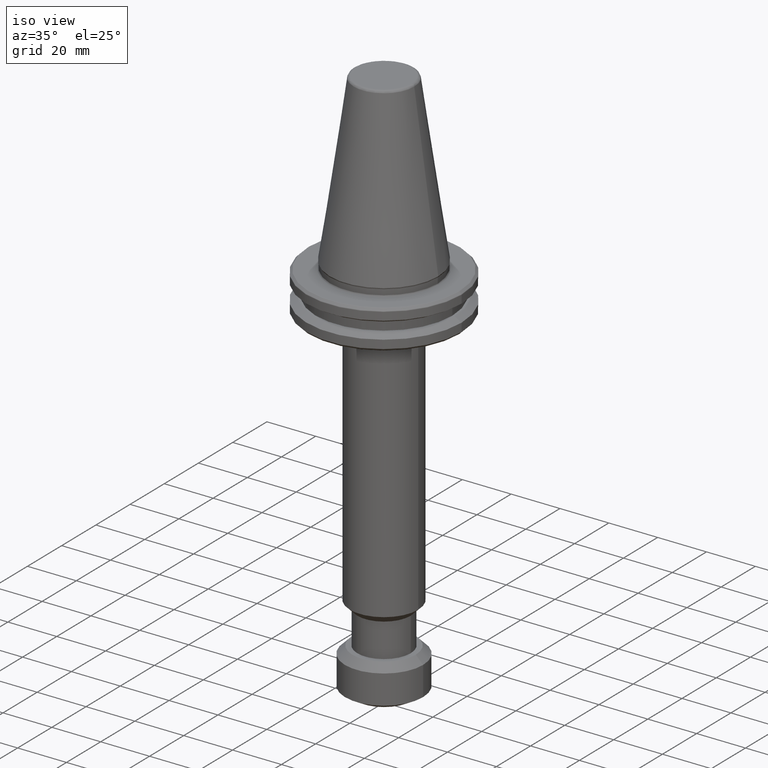
[diagram: clean part render]
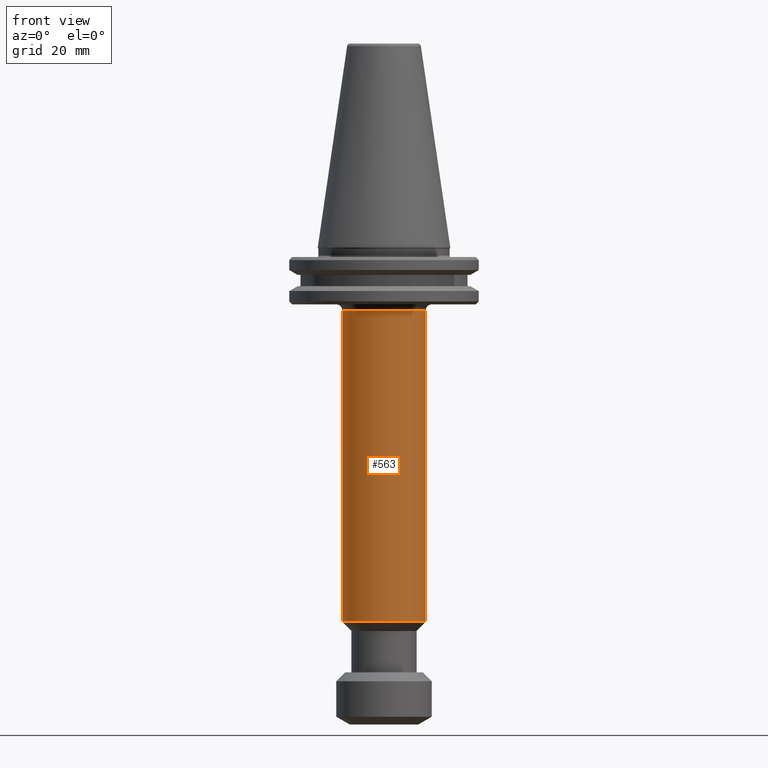
[diagram: tour spotlight — one face highlighted and labeled with its STEP entity id]
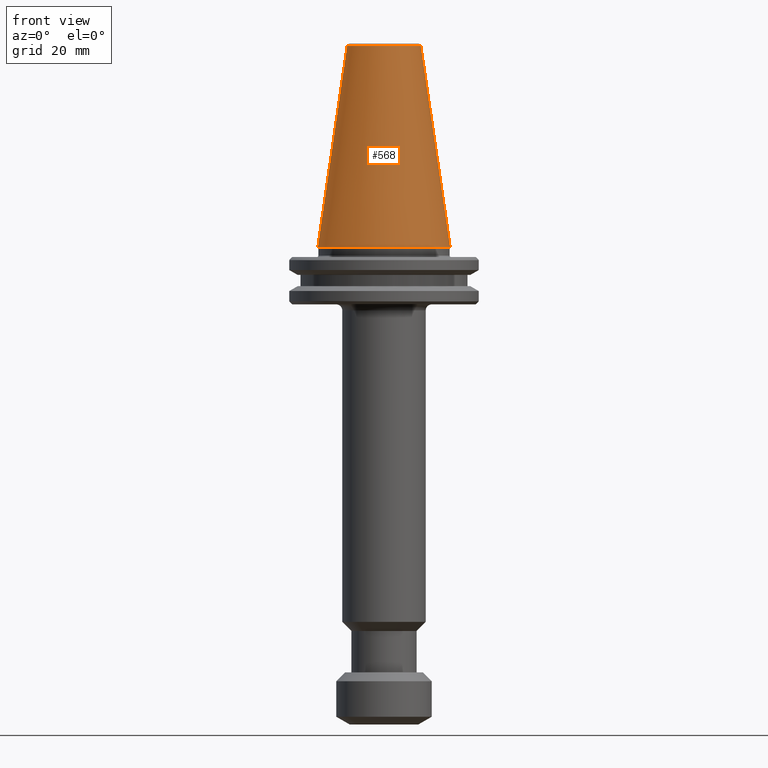
[diagram: tour spotlight — one face highlighted and labeled with its STEP entity id]
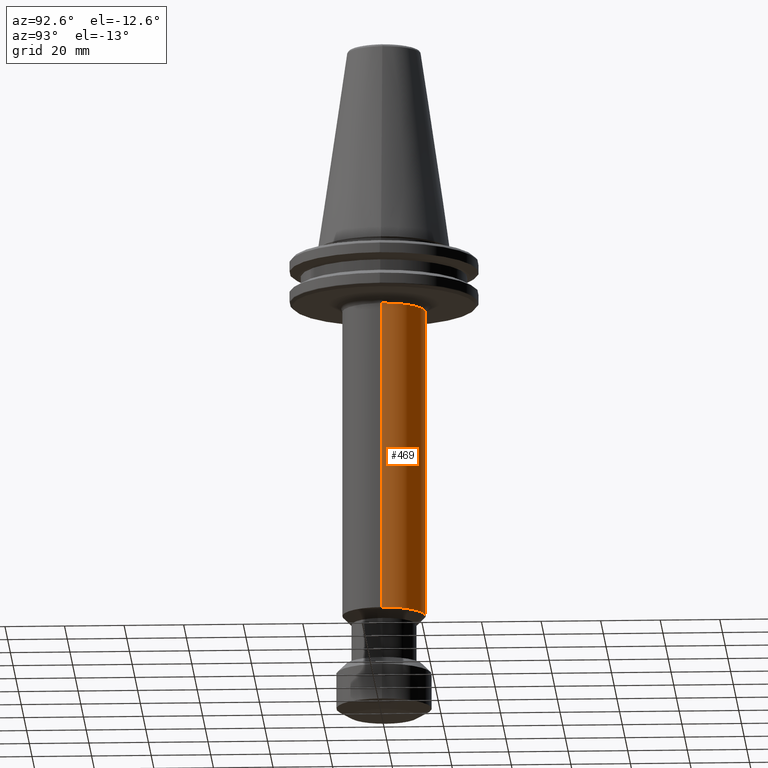
[diagram: tour spotlight — one face highlighted and labeled with its STEP entity id]
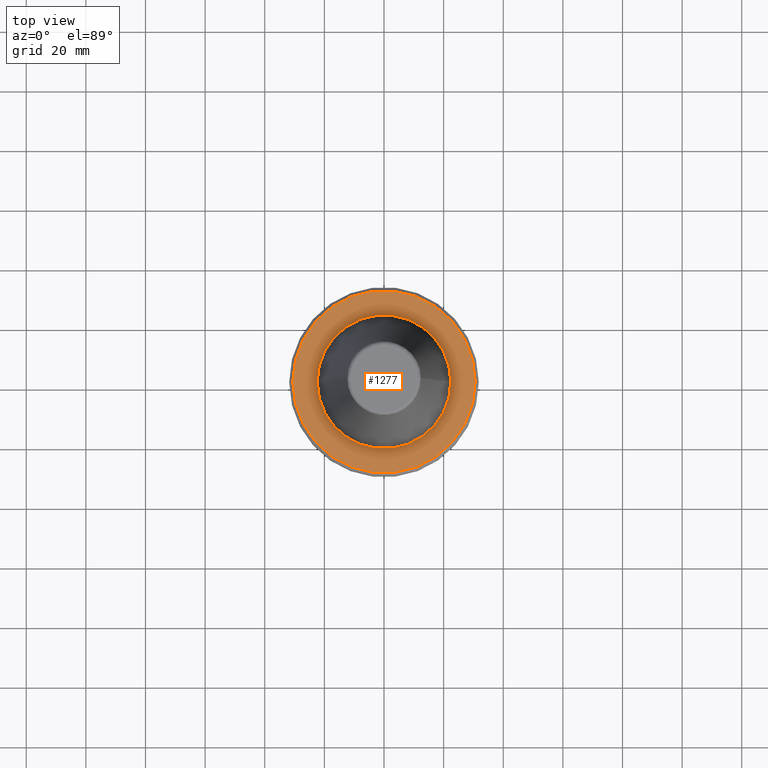
[diagram: tour spotlight — one face highlighted and labeled with its STEP entity id]
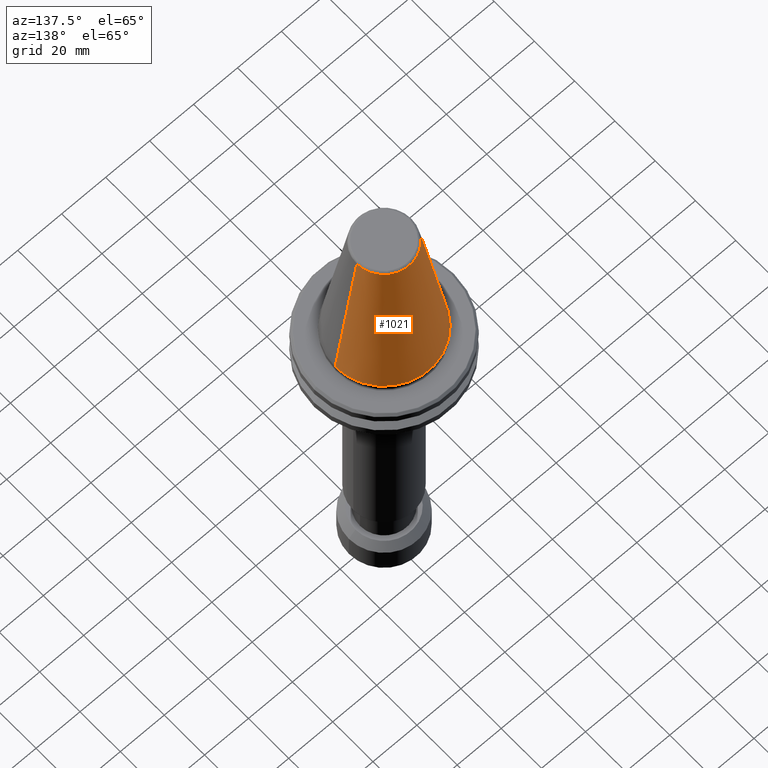
[diagram: tour spotlight — one face highlighted and labeled with its STEP entity id]
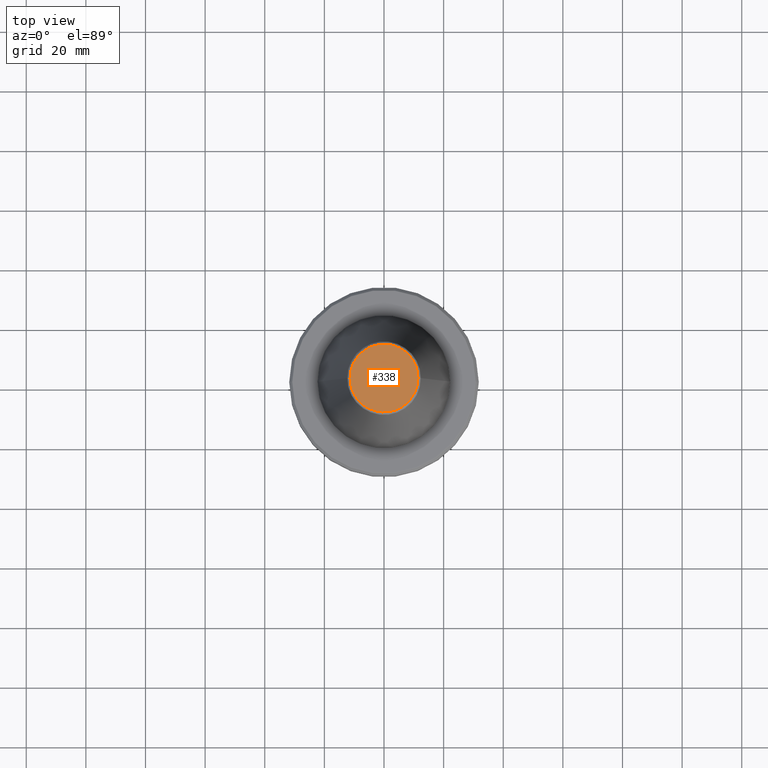
[diagram: tour spotlight — one face highlighted and labeled with its STEP entity id]
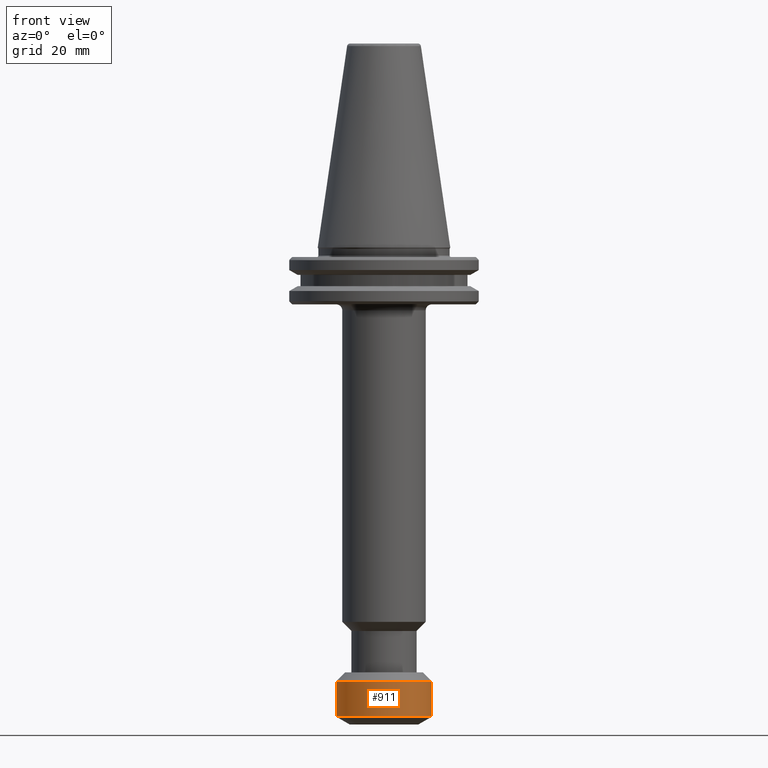
[diagram: tour spotlight — one face highlighted and labeled with its STEP entity id]
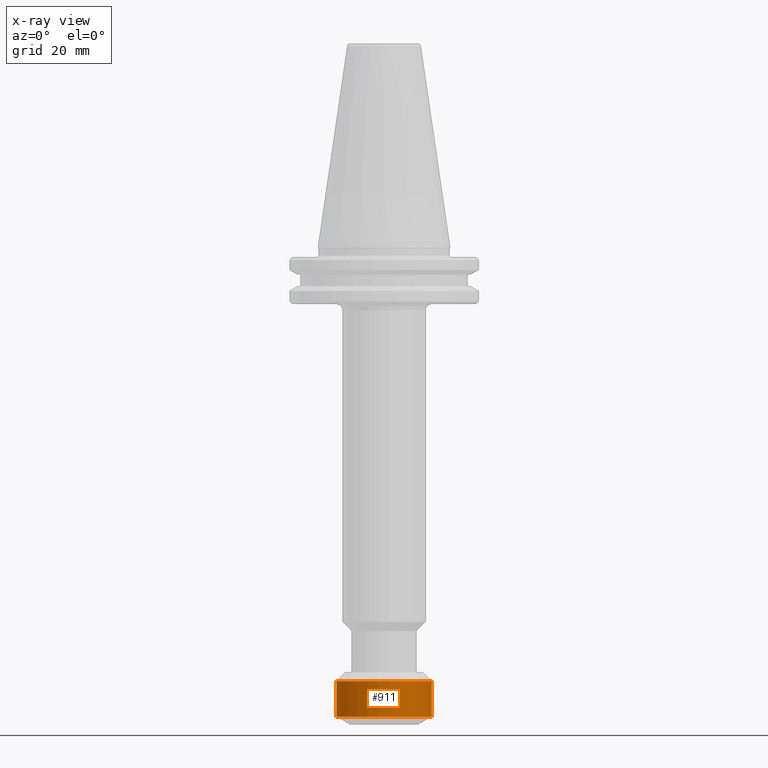
[diagram: x-ray of the same camera — body ghosted, this tour face saturated]
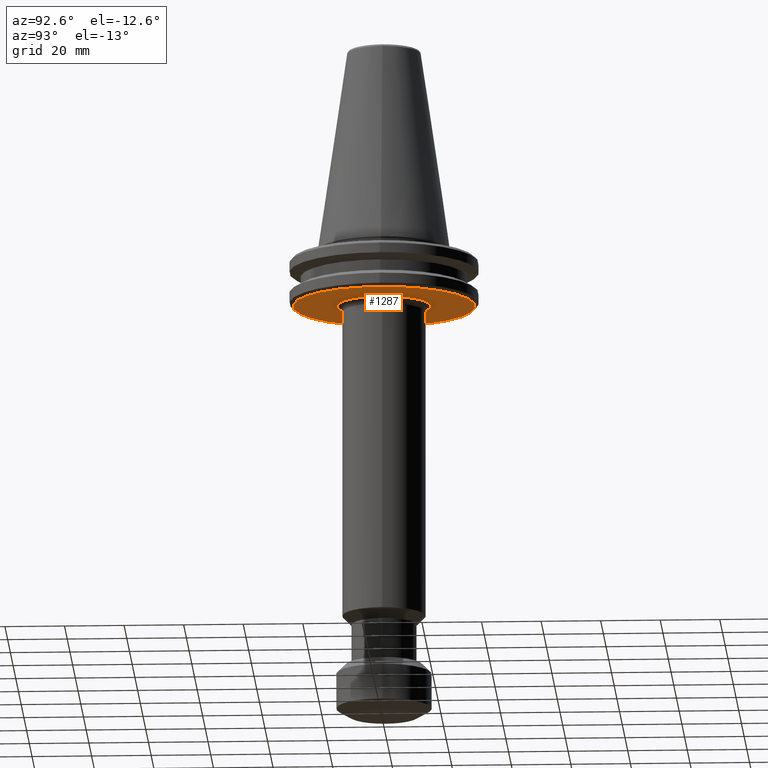
[diagram: tour spotlight — one face highlighted and labeled with its STEP entity id]
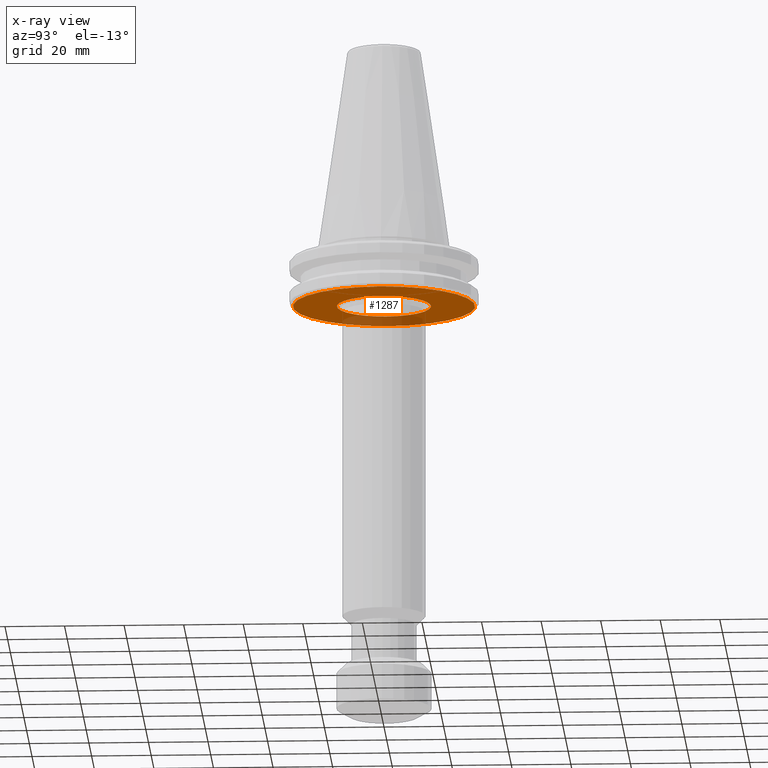
[diagram: x-ray of the same camera — body ghosted, this tour face saturated]
A machine part: a face-by-face anatomy tour. The part has 53 B-rep faces; the first image is the clean iso view, then the 8 largest visible faces are spotlighted one at a time (largest first), each with its STEP entity span.

Face 1 — front view, entity #563. In plain terms, the highlighted cylindrical surface (partial cylindrical patch) has radius 14 mm, axis along (-0, 0, 1).
Definition (entity closure, byte-faithful):
#38 = VECTOR ( 'NONE', #378, 1000.000000000000000 ) ;
#56 = EDGE_CURVE ( 'NONE', #282, #1254, #1248, .T. ) ;
#83 = DIRECTION ( 'NONE',  ( -9.912705577010328500E-016, 0.0000000000000000000, 1.000000000000000000 ) ) ;
#87 = CARTESIAN_POINT ( 'NONE',  ( 4.126992737972649500E-029, 0.0000000000000000000, -125.5800000000000300 ) ) ;
#224 = LINE ( 'NONE', #986, #38 ) ;
#282 = VERTEX_POINT ( 'NONE', #1132 ) ;
#294 = VECTOR ( 'NONE', #83, 1000.000000000000000 ) ;
#297 = EDGE_CURVE ( 'NONE', #1530, #1254, #598, .T. ) ;
#312 = ORIENTED_EDGE ( 'NONE', *, *, #1203, .T. ) ;
#357 = ORIENTED_EDGE ( 'NONE', *, *, #56, .F. ) ;
#378 = DIRECTION ( 'NONE',  ( -9.912705577010328500E-016, 0.0000000000000000000, 1.000000000000000000 ) ) ;
#406 = ORIENTED_EDGE ( 'NONE', *, *, #297, .T. ) ;
#417 = ORIENTED_EDGE ( 'NONE', *, *, #760, .T. ) ;
#424 = CARTESIAN_POINT ( 'NONE',  ( 13.99999999999994800, -1.714505518806294600E-015, -21.10000000000000100 ) ) ;
#563 = ADVANCED_FACE ( 'NONE', ( #805 ), #1430, .T. ) ;
#598 = CIRCLE ( 'NONE', #1059, 14.00000000000000000 ) ;
#629 = CIRCLE ( 'NONE', #840, 14.00000000000000000 ) ;
#656 = DIRECTION ( 'NONE',  ( 1.000000000000000000, 0.0000000000000000000, 1.982541115402065300E-015 ) ) ;
#683 = VERTEX_POINT ( 'NONE', #705 ) ;
#705 = CARTESIAN_POINT ( 'NONE',  ( 13.99999999999994700, 0.0000000000000000000, -125.5800000000000300 ) ) ;
#744 = CARTESIAN_POINT ( 'NONE',  ( -14.00000000000000000, 1.714505518806294600E-015, -125.5800000000000300 ) ) ;
#752 = DIRECTION ( 'NONE',  ( 9.912705577010328500E-016, -0.0000000000000000000, -1.000000000000000000 ) ) ;
#760 = EDGE_CURVE ( 'NONE', #282, #683, #629, .T. ) ;
#798 = DIRECTION ( 'NONE',  ( -9.912705577010328500E-016, 0.0000000000000000000, 1.000000000000000000 ) ) ;
#805 = FACE_OUTER_BOUND ( 'NONE', #1063, .T. ) ;
#840 = AXIS2_PLACEMENT_3D ( 'NONE', #87, #798, #1101 ) ;
#986 = CARTESIAN_POINT ( 'NONE',  ( 14.00000000000000000, 0.0000000000000000000, -125.5799999999999700 ) ) ;
#1012 = CARTESIAN_POINT ( 'NONE',  ( -1.035679478686038800E-013, 0.0000000000000000000, -21.10000000000002300 ) ) ;
#1059 = AXIS2_PLACEMENT_3D ( 'NONE', #1012, #752, #1367 ) ;
#1063 = EDGE_LOOP ( 'NONE', ( #357, #417, #312, #406 ) ) ;
#1101 = DIRECTION ( 'NONE',  ( 1.000000000000000000, 0.0000000000000000000, 1.982541115402065300E-015 ) ) ;
#1106 = CARTESIAN_POINT ( 'NONE',  ( -14.00000000000007800, -1.435721588042324400E-009, -21.10000000000001200 ) ) ;
#1132 = CARTESIAN_POINT ( 'NONE',  ( -13.99999999999992500, 1.714505518806285000E-015, -125.5800000000000300 ) ) ;
#1197 = AXIS2_PLACEMENT_3D ( 'NONE', #1292, #1352, #656 ) ;
#1203 = EDGE_CURVE ( 'NONE', #683, #1530, #224, .T. ) ;
#1248 = LINE ( 'NONE', #744, #294 ) ;
#1254 = VERTEX_POINT ( 'NONE', #1106 ) ;
#1292 = CARTESIAN_POINT ( 'NONE',  ( 0.0000000000000000000, 0.0000000000000000000, -125.5800000000000000 ) ) ;
#1352 = DIRECTION ( 'NONE',  ( -9.912705577010328500E-016, 0.0000000000000000000, 1.000000000000000000 ) ) ;
#1367 = DIRECTION ( 'NONE',  ( 1.000000000000000000, 0.0000000000000000000, 9.912705577010326500E-016 ) ) ;
#1430 = CYLINDRICAL_SURFACE ( 'NONE', #1197, 14.00000000000000000 ) ;
#1530 = VERTEX_POINT ( 'NONE', #424 ) ;

Face 2 — front view, entity #568. In plain terms, the highlighted conical surface has half-angle 8.297 deg.
Definition (entity closure, byte-faithful):
#1 = CARTESIAN_POINT ( 'NONE',  ( -22.22499999999999400, 0.0000000000000000000, 0.0000000000000000000 ) ) ;
#67 = EDGE_CURVE ( 'NONE', #86, #894, #278, .T. ) ;
#86 = VERTEX_POINT ( 'NONE', #159 ) ;
#104 = EDGE_CURVE ( 'NONE', #894, #1108, #843, .T. ) ;
#121 = CONICAL_SURFACE ( 'NONE', #1107, 22.22499999999999400, 0.1448138465495947800 ) ;
#159 = CARTESIAN_POINT ( 'NONE',  ( 12.37469537600000400, -1.827424880260667500E-009, 67.54430822700000200 ) ) ;
#243 = DIRECTION ( 'NONE',  ( -0.0000000000000000000, -0.0000000000000000000, -1.000000000000000000 ) ) ;
#278 = LINE ( 'NONE', #1359, #344 ) ;
#344 = VECTOR ( 'NONE', #903, 1000.000000000000100 ) ;
#346 = CIRCLE ( 'NONE', #1522, 12.37469537600000400 ) ;
#416 = CARTESIAN_POINT ( 'NONE',  ( 22.22499999999999400, 2.721777511104992100E-015, 0.0000000000000000000 ) ) ;
#564 = LINE ( 'NONE', #1098, #718 ) ;
#568 = ADVANCED_FACE ( 'NONE', ( #1467 ), #121, .T. ) ;
#603 = EDGE_CURVE ( 'NONE', #615, #1108, #564, .T. ) ;
#615 = VERTEX_POINT ( 'NONE', #1413 ) ;
#718 = VECTOR ( 'NONE', #1280, 1000.000000000000100 ) ;
#758 = ORIENTED_EDGE ( 'NONE', *, *, #104, .F. ) ;
#821 = DIRECTION ( 'NONE',  ( 0.0000000000000000000, 0.0000000000000000000, -1.000000000000000000 ) ) ;
#843 = CIRCLE ( 'NONE', #1093, 22.22499999999999800 ) ;
#862 = ORIENTED_EDGE ( 'NONE', *, *, #1325, .T. ) ;
#894 = VERTEX_POINT ( 'NONE', #416 ) ;
#903 = DIRECTION ( 'NONE',  ( 0.1443082272694599400, 1.767266086161729200E-017, -0.9895327864918603800 ) ) ;
#945 = ORIENTED_EDGE ( 'NONE', *, *, #603, .T. ) ;
#1004 = CARTESIAN_POINT ( 'NONE',  ( 0.0000000000000000000, 0.0000000000000000000, 0.0000000000000000000 ) ) ;
#1008 = EDGE_LOOP ( 'NONE', ( #1312, #862, #945, #758 ) ) ;
#1046 = DIRECTION ( 'NONE',  ( 1.000000000000000000, 0.0000000000000000000, -2.683064993777401700E-017 ) ) ;
#1093 = AXIS2_PLACEMENT_3D ( 'NONE', #1251, #243, #1046 ) ;
#1098 = CARTESIAN_POINT ( 'NONE',  ( -22.22499999999999400, 0.0000000000000000000, 0.0000000000000000000 ) ) ;
#1107 = AXIS2_PLACEMENT_3D ( 'NONE', #1004, #1326, #1180 ) ;
#1108 = VERTEX_POINT ( 'NONE', #1 ) ;
#1180 = DIRECTION ( 'NONE',  ( -1.000000000000000000, 0.0000000000000000000, 0.0000000000000000000 ) ) ;
#1251 = CARTESIAN_POINT ( 'NONE',  ( 0.0000000000000000000, 0.0000000000000000000, 0.0000000000000000000 ) ) ;
#1280 = DIRECTION ( 'NONE',  ( -0.1443082272694599400, 0.0000000000000000000, -0.9895327864918603800 ) ) ;
#1312 = ORIENTED_EDGE ( 'NONE', *, *, #67, .F. ) ;
#1325 = EDGE_CURVE ( 'NONE', #86, #615, #346, .T. ) ;
#1326 = DIRECTION ( 'NONE',  ( 0.0000000000000000000, 0.0000000000000000000, -1.000000000000000000 ) ) ;
#1359 = CARTESIAN_POINT ( 'NONE',  ( 22.22499999999999400, 2.721777511104992100E-015, 0.0000000000000000000 ) ) ;
#1413 = CARTESIAN_POINT ( 'NONE',  ( -12.37469537600000400, 0.0000000000000000000, 67.54430822700000200 ) ) ;
#1467 = FACE_OUTER_BOUND ( 'NONE', #1008, .T. ) ;
#1512 = CARTESIAN_POINT ( 'NONE',  ( 0.0000000000000000000, 0.0000000000000000000, 67.54430822699998800 ) ) ;
#1522 = AXIS2_PLACEMENT_3D ( 'NONE', #1512, #821, #1545 ) ;
#1545 = DIRECTION ( 'NONE',  ( -1.000000000000000000, 0.0000000000000000000, 0.0000000000000000000 ) ) ;

Face 3 — auxiliary view, entity #469. In plain terms, the highlighted cylindrical surface (partial cylindrical patch) has radius 14 mm, axis along (-0, 0, 1).
Definition (entity closure, byte-faithful):
#32 = DIRECTION ( 'NONE',  ( -9.912705577010328500E-016, 0.0000000000000000000, 1.000000000000000000 ) ) ;
#36 = DIRECTION ( 'NONE',  ( 1.000000000000000000, 0.0000000000000000000, 1.982541115402065300E-015 ) ) ;
#38 = VECTOR ( 'NONE', #378, 1000.000000000000000 ) ;
#56 = EDGE_CURVE ( 'NONE', #282, #1254, #1248, .T. ) ;
#83 = DIRECTION ( 'NONE',  ( -9.912705577010328500E-016, 0.0000000000000000000, 1.000000000000000000 ) ) ;
#112 = EDGE_LOOP ( 'NONE', ( #552, #1461, #369, #634 ) ) ;
#224 = LINE ( 'NONE', #986, #38 ) ;
#254 = CARTESIAN_POINT ( 'NONE',  ( -1.035679478686039000E-013, 0.0000000000000000000, -21.09999999999999400 ) ) ;
#282 = VERTEX_POINT ( 'NONE', #1132 ) ;
#294 = VECTOR ( 'NONE', #83, 1000.000000000000000 ) ;
#365 = DIRECTION ( 'NONE',  ( 1.000000000000000000, 0.0000000000000000000, 9.912705577010326500E-016 ) ) ;
#369 = ORIENTED_EDGE ( 'NONE', *, *, #791, .T. ) ;
#378 = DIRECTION ( 'NONE',  ( -9.912705577010328500E-016, 0.0000000000000000000, 1.000000000000000000 ) ) ;
#424 = CARTESIAN_POINT ( 'NONE',  ( 13.99999999999994800, -1.714505518806294600E-015, -21.10000000000000100 ) ) ;
#469 = ADVANCED_FACE ( 'NONE', ( #1547 ), #1507, .T. ) ;
#503 = CARTESIAN_POINT ( 'NONE',  ( 0.0000000000000000000, 0.0000000000000000000, -125.5800000000000000 ) ) ;
#552 = ORIENTED_EDGE ( 'NONE', *, *, #1278, .T. ) ;
#611 = CIRCLE ( 'NONE', #1002, 14.00000000000000000 ) ;
#634 = ORIENTED_EDGE ( 'NONE', *, *, #1203, .F. ) ;
#683 = VERTEX_POINT ( 'NONE', #705 ) ;
#700 = AXIS2_PLACEMENT_3D ( 'NONE', #503, #895, #985 ) ;
#705 = CARTESIAN_POINT ( 'NONE',  ( 13.99999999999994700, 0.0000000000000000000, -125.5800000000000300 ) ) ;
#744 = CARTESIAN_POINT ( 'NONE',  ( -14.00000000000000000, 1.714505518806294600E-015, -125.5800000000000300 ) ) ;
#791 = EDGE_CURVE ( 'NONE', #1254, #1530, #915, .T. ) ;
#895 = DIRECTION ( 'NONE',  ( -9.912705577010328500E-016, 0.0000000000000000000, 1.000000000000000000 ) ) ;
#915 = CIRCLE ( 'NONE', #919, 14.00000000000000000 ) ;
#919 = AXIS2_PLACEMENT_3D ( 'NONE', #254, #1199, #365 ) ;
#985 = DIRECTION ( 'NONE',  ( 1.000000000000000000, 0.0000000000000000000, 1.982541115402065300E-015 ) ) ;
#986 = CARTESIAN_POINT ( 'NONE',  ( 14.00000000000000000, 0.0000000000000000000, -125.5799999999999700 ) ) ;
#1002 = AXIS2_PLACEMENT_3D ( 'NONE', #1495, #32, #36 ) ;
#1106 = CARTESIAN_POINT ( 'NONE',  ( -14.00000000000007800, -1.435721588042324400E-009, -21.10000000000001200 ) ) ;
#1132 = CARTESIAN_POINT ( 'NONE',  ( -13.99999999999992500, 1.714505518806285000E-015, -125.5800000000000300 ) ) ;
#1199 = DIRECTION ( 'NONE',  ( 9.912705577010328500E-016, -0.0000000000000000000, -1.000000000000000000 ) ) ;
#1203 = EDGE_CURVE ( 'NONE', #683, #1530, #224, .T. ) ;
#1248 = LINE ( 'NONE', #744, #294 ) ;
#1254 = VERTEX_POINT ( 'NONE', #1106 ) ;
#1278 = EDGE_CURVE ( 'NONE', #683, #282, #611, .T. ) ;
#1461 = ORIENTED_EDGE ( 'NONE', *, *, #56, .T. ) ;
#1495 = CARTESIAN_POINT ( 'NONE',  ( 4.126992737972649500E-029, 0.0000000000000000000, -125.5800000000000300 ) ) ;
#1507 = CYLINDRICAL_SURFACE ( 'NONE', #700, 14.00000000000000000 ) ;
#1530 = VERTEX_POINT ( 'NONE', #424 ) ;
#1547 = FACE_OUTER_BOUND ( 'NONE', #112, .T. ) ;

Face 4 — top view, entity #1277. In plain terms, the highlighted planar face has unit normal (0, -0, 1).
Definition (entity closure, byte-faithful):
#37 = CARTESIAN_POINT ( 'NONE',  ( 30.59431457595958600, 0.0000000000000000000, -3.189999997941266800 ) ) ;
#73 = DIRECTION ( 'NONE',  ( 1.000000000000000000, 0.0000000000000000000, 0.0000000000000000000 ) ) ;
#125 = EDGE_CURVE ( 'NONE', #643, #233, #486, .T. ) ;
#156 = CIRCLE ( 'NONE', #429, 30.59431457595958600 ) ;
#199 = EDGE_CURVE ( 'NONE', #233, #643, #156, .T. ) ;
#211 = ORIENTED_EDGE ( 'NONE', *, *, #976, .F. ) ;
#233 = VERTEX_POINT ( 'NONE', #1140 ) ;
#240 = DIRECTION ( 'NONE',  ( -0.0000000000000000000, -0.0000000000000000000, 1.000000000000000000 ) ) ;
#327 = DIRECTION ( 'NONE',  ( 1.000000000000000000, 0.0000000000000000000, 0.0000000000000000000 ) ) ;
#426 = CARTESIAN_POINT ( 'NONE',  ( 0.0000000000000000000, 0.0000000000000000000, -3.189999997941266800 ) ) ;
#429 = AXIS2_PLACEMENT_3D ( 'NONE', #426, #1245, #587 ) ;
#463 = FACE_OUTER_BOUND ( 'NONE', #1183, .T. ) ;
#486 = CIRCLE ( 'NONE', #1185, 30.59431457595958600 ) ;
#540 = DIRECTION ( 'NONE',  ( 0.0000000000000000000, -0.0000000000000000000, 1.000000000000000000 ) ) ;
#558 = VERTEX_POINT ( 'NONE', #995 ) ;
#587 = DIRECTION ( 'NONE',  ( 1.000000000000000000, 0.0000000000000000000, 0.0000000000000000000 ) ) ;
#606 = DIRECTION ( 'NONE',  ( 0.0000000000000000000, 2.890297460499907100E-017, 1.000000000000000000 ) ) ;
#622 = CARTESIAN_POINT ( 'NONE',  ( 0.0000000000000000000, -1.926865375008434100E-019, -3.189999997941267200 ) ) ;
#643 = VERTEX_POINT ( 'NONE', #37 ) ;
#661 = CARTESIAN_POINT ( 'NONE',  ( 0.0000000000000000000, 0.0000000000000000000, -3.189999997941266800 ) ) ;
#839 = CIRCLE ( 'NONE', #1503, 22.40050124698735300 ) ;
#844 = CARTESIAN_POINT ( 'NONE',  ( 0.0000000000000000000, 0.0000000000000000000, -3.189999997941266800 ) ) ;
#861 = PLANE ( 'NONE',  #1086 ) ;
#884 = EDGE_LOOP ( 'NONE', ( #211, #1221 ) ) ;
#941 = ORIENTED_EDGE ( 'NONE', *, *, #199, .T. ) ;
#976 = EDGE_CURVE ( 'NONE', #558, #1126, #839, .T. ) ;
#995 = CARTESIAN_POINT ( 'NONE',  ( 22.40050124697367600, 0.0000000000000000000, -3.189999998008717700 ) ) ;
#1031 = DIRECTION ( 'NONE',  ( 0.0000000000000000000, -1.926864973666604500E-017, 1.000000000000000000 ) ) ;
#1050 = CARTESIAN_POINT ( 'NONE',  ( -22.40050124698737100, -7.964619176490744600E-010, -3.189999997941267200 ) ) ;
#1086 = AXIS2_PLACEMENT_3D ( 'NONE', #661, #540, #327 ) ;
#1126 = VERTEX_POINT ( 'NONE', #1050 ) ;
#1140 = CARTESIAN_POINT ( 'NONE',  ( -30.59431457595958600, 3.764475040830645400E-015, -3.189999997941266800 ) ) ;
#1146 = AXIS2_PLACEMENT_3D ( 'NONE', #622, #1031, #1241 ) ;
#1183 = EDGE_LOOP ( 'NONE', ( #1253, #941 ) ) ;
#1185 = AXIS2_PLACEMENT_3D ( 'NONE', #844, #240, #73 ) ;
#1221 = ORIENTED_EDGE ( 'NONE', *, *, #1482, .F. ) ;
#1229 = CIRCLE ( 'NONE', #1146, 22.40050124698737100 ) ;
#1241 = DIRECTION ( 'NONE',  ( 0.0000000000000000000, -1.000000000000000000, -1.936031985233041200E-017 ) ) ;
#1245 = DIRECTION ( 'NONE',  ( -0.0000000000000000000, -0.0000000000000000000, 1.000000000000000000 ) ) ;
#1253 = ORIENTED_EDGE ( 'NONE', *, *, #125, .T. ) ;
#1277 = ADVANCED_FACE ( 'NONE', ( #463, #1505 ), #861, .T. ) ;
#1341 = DIRECTION ( 'NONE',  ( 0.0000000000000000000, -1.000000000000000000, 1.936031985233042700E-017 ) ) ;
#1473 = CARTESIAN_POINT ( 'NONE',  ( 0.0000000000000000000, 2.890298062512964600E-019, -3.189999997941265900 ) ) ;
#1482 = EDGE_CURVE ( 'NONE', #1126, #558, #1229, .T. ) ;
#1503 = AXIS2_PLACEMENT_3D ( 'NONE', #1473, #606, #1341 ) ;
#1505 = FACE_BOUND ( 'NONE', #884, .T. ) ;

Face 5 — auxiliary view, entity #1021. In plain terms, the highlighted conical surface has half-angle 8.297 deg.
Definition (entity closure, byte-faithful):
#1 = CARTESIAN_POINT ( 'NONE',  ( -22.22499999999999400, 0.0000000000000000000, 0.0000000000000000000 ) ) ;
#46 = DIRECTION ( 'NONE',  ( 0.0000000000000000000, 0.0000000000000000000, -1.000000000000000000 ) ) ;
#67 = EDGE_CURVE ( 'NONE', #86, #894, #278, .T. ) ;
#86 = VERTEX_POINT ( 'NONE', #159 ) ;
#159 = CARTESIAN_POINT ( 'NONE',  ( 12.37469537600000400, -1.827424880260667500E-009, 67.54430822700000200 ) ) ;
#175 = CIRCLE ( 'NONE', #1487, 22.22499999999999800 ) ;
#278 = LINE ( 'NONE', #1359, #344 ) ;
#331 = AXIS2_PLACEMENT_3D ( 'NONE', #353, #439, #684 ) ;
#344 = VECTOR ( 'NONE', #903, 1000.000000000000100 ) ;
#353 = CARTESIAN_POINT ( 'NONE',  ( 0.0000000000000000000, 0.0000000000000000000, 0.0000000000000000000 ) ) ;
#367 = DIRECTION ( 'NONE',  ( 1.000000000000000000, 0.0000000000000000000, -2.683064993777401700E-017 ) ) ;
#400 = EDGE_CURVE ( 'NONE', #1108, #894, #175, .T. ) ;
#416 = CARTESIAN_POINT ( 'NONE',  ( 22.22499999999999400, 2.721777511104992100E-015, 0.0000000000000000000 ) ) ;
#425 = ORIENTED_EDGE ( 'NONE', *, *, #67, .T. ) ;
#439 = DIRECTION ( 'NONE',  ( 0.0000000000000000000, 0.0000000000000000000, -1.000000000000000000 ) ) ;
#451 = ORIENTED_EDGE ( 'NONE', *, *, #1118, .T. ) ;
#564 = LINE ( 'NONE', #1098, #718 ) ;
#603 = EDGE_CURVE ( 'NONE', #615, #1108, #564, .T. ) ;
#615 = VERTEX_POINT ( 'NONE', #1413 ) ;
#621 = CARTESIAN_POINT ( 'NONE',  ( 0.0000000000000000000, 0.0000000000000000000, 0.0000000000000000000 ) ) ;
#684 = DIRECTION ( 'NONE',  ( -1.000000000000000000, 0.0000000000000000000, 0.0000000000000000000 ) ) ;
#718 = VECTOR ( 'NONE', #1280, 1000.000000000000100 ) ;
#786 = DIRECTION ( 'NONE',  ( -1.000000000000000000, 0.0000000000000000000, 0.0000000000000000000 ) ) ;
#894 = VERTEX_POINT ( 'NONE', #416 ) ;
#903 = DIRECTION ( 'NONE',  ( 0.1443082272694599400, 1.767266086161729200E-017, -0.9895327864918603800 ) ) ;
#960 = AXIS2_PLACEMENT_3D ( 'NONE', #1410, #46, #786 ) ;
#966 = DIRECTION ( 'NONE',  ( -0.0000000000000000000, -0.0000000000000000000, -1.000000000000000000 ) ) ;
#1005 = ORIENTED_EDGE ( 'NONE', *, *, #603, .F. ) ;
#1021 = ADVANCED_FACE ( 'NONE', ( #1177 ), #1224, .T. ) ;
#1098 = CARTESIAN_POINT ( 'NONE',  ( -22.22499999999999400, 0.0000000000000000000, 0.0000000000000000000 ) ) ;
#1108 = VERTEX_POINT ( 'NONE', #1 ) ;
#1118 = EDGE_CURVE ( 'NONE', #615, #86, #1161, .T. ) ;
#1161 = CIRCLE ( 'NONE', #960, 12.37469537600000400 ) ;
#1177 = FACE_OUTER_BOUND ( 'NONE', #1538, .T. ) ;
#1192 = ORIENTED_EDGE ( 'NONE', *, *, #400, .F. ) ;
#1224 = CONICAL_SURFACE ( 'NONE', #331, 22.22499999999999400, 0.1448138465495947800 ) ;
#1280 = DIRECTION ( 'NONE',  ( -0.1443082272694599400, 0.0000000000000000000, -0.9895327864918603800 ) ) ;
#1359 = CARTESIAN_POINT ( 'NONE',  ( 22.22499999999999400, 2.721777511104992100E-015, 0.0000000000000000000 ) ) ;
#1410 = CARTESIAN_POINT ( 'NONE',  ( 0.0000000000000000000, 0.0000000000000000000, 67.54430822699998800 ) ) ;
#1413 = CARTESIAN_POINT ( 'NONE',  ( -12.37469537600000400, 0.0000000000000000000, 67.54430822700000200 ) ) ;
#1487 = AXIS2_PLACEMENT_3D ( 'NONE', #621, #966, #367 ) ;
#1538 = EDGE_LOOP ( 'NONE', ( #451, #425, #1192, #1005 ) ) ;

Face 6 — top view, entity #338. In plain terms, the highlighted planar face has unit normal (0, 0, 1).
Definition (entity closure, byte-faithful):
#76 = CARTESIAN_POINT ( 'NONE',  ( 11.38516258900000500, 22.77032517900000000, 68.40000000000002000 ) ) ;
#92 = CARTESIAN_POINT ( 'NONE',  ( -11.38516258900000500, -22.77032517900000000, 68.40000000000002000 ) ) ;
#106 = DIRECTION ( 'NONE',  ( 1.000000000000000000, 0.0000000000000000000, -0.0000000000000000000 ) ) ;
#107 = CARTESIAN_POINT ( 'NONE',  ( 11.38516258847487900, 0.0000000000000000000, 68.40000000000002000 ) ) ;
#180 = CARTESIAN_POINT ( 'NONE',  ( 11.38516258847487900, 0.0000000000000000000, 68.40000000000002000 ) ) ;
#272 =( BOUNDED_CURVE ( )  B_SPLINE_CURVE ( 3, ( #180, #889, #92, #1440 ),
 .UNSPECIFIED., .F., .F. ) 
 B_SPLINE_CURVE_WITH_KNOTS ( ( 4, 4 ),
 ( 0.0000000000000000000, 1.000000000000000000 ),
 .UNSPECIFIED. ) 
 CURVE ( )  GEOMETRIC_REPRESENTATION_ITEM ( )  RATIONAL_B_SPLINE_CURVE ( ( 0.9606698257068210200, 0.3202232752356071200, 0.3202232752356071200, 0.9606698257068210200 ) ) 
 REPRESENTATION_ITEM ( '' )  );
#338 = ADVANCED_FACE ( 'NONE', ( #541 ), #1537, .T. ) ;
#410 = CARTESIAN_POINT ( 'NONE',  ( -11.38516258847488200, 0.0000000000000000000, 68.40000000000002000 ) ) ;
#471 = CARTESIAN_POINT ( 'NONE',  ( -11.52178454100000100, -11.52180192099999800, 68.40000000000000600 ) ) ;
#541 = FACE_OUTER_BOUND ( 'NONE', #681, .T. ) ;
#569 = CARTESIAN_POINT ( 'NONE',  ( -11.38516258900000500, 22.77032517900000000, 68.40000000000002000 ) ) ;
#584 =( BOUNDED_CURVE ( )  B_SPLINE_CURVE ( 3, ( #410, #569, #76, #107 ),
 .UNSPECIFIED., .F., .T. ) 
 B_SPLINE_CURVE_WITH_KNOTS ( ( 4, 4 ),
 ( 0.0000000000000000000, 1.000000000000000000 ),
 .UNSPECIFIED. ) 
 CURVE ( )  GEOMETRIC_REPRESENTATION_ITEM ( )  RATIONAL_B_SPLINE_CURVE ( ( 0.9606698257068200200, 0.3202232752356071200, 0.3202232752356071200, 0.9606698257068200200 ) ) 
 REPRESENTATION_ITEM ( '' )  );
#670 = VERTEX_POINT ( 'NONE', #1040 ) ;
#681 = EDGE_LOOP ( 'NONE', ( #1182, #1434 ) ) ;
#889 = CARTESIAN_POINT ( 'NONE',  ( 11.38516258900000500, -22.77032517900000000, 68.40000000000002000 ) ) ;
#904 = CARTESIAN_POINT ( 'NONE',  ( -11.38516258847488200, 0.0000000000000000000, 68.40000000000002000 ) ) ;
#932 = DIRECTION ( 'NONE',  ( 0.0000000000000000000, 0.0000000000000000000, 1.000000000000000000 ) ) ;
#957 = EDGE_CURVE ( 'NONE', #1457, #670, #584, .T. ) ;
#1040 = CARTESIAN_POINT ( 'NONE',  ( 11.38516258847487900, 0.0000000000000000000, 68.40000000000002000 ) ) ;
#1182 = ORIENTED_EDGE ( 'NONE', *, *, #957, .F. ) ;
#1374 = EDGE_CURVE ( 'NONE', #670, #1457, #272, .T. ) ;
#1434 = ORIENTED_EDGE ( 'NONE', *, *, #1374, .F. ) ;
#1440 = CARTESIAN_POINT ( 'NONE',  ( -11.38516258847488200, 0.0000000000000000000, 68.40000000000002000 ) ) ;
#1457 = VERTEX_POINT ( 'NONE', #904 ) ;
#1500 = AXIS2_PLACEMENT_3D ( 'NONE', #471, #932, #106 ) ;
#1537 = PLANE ( 'NONE',  #1500 ) ;

Face 7 — front view, entity #911. An x-ray twin of the same camera follows (body ghosted, this face saturated) — the face is partly hidden behind the body. In plain terms, the highlighted cylindrical surface (partial cylindrical patch) has radius 16 mm, axis along (0, 0, 1).
Definition (entity closure, byte-faithful):
#62 = LINE ( 'NONE', #96, #969 ) ;
#69 = VERTEX_POINT ( 'NONE', #1114 ) ;
#96 = CARTESIAN_POINT ( 'NONE',  ( 16.00000000000000000, 0.0000000000000000000, -157.4019237889999900 ) ) ;
#228 = DIRECTION ( 'NONE',  ( 0.0000000000000000000, 0.0000000000000000000, 1.000000000000000000 ) ) ;
#244 = EDGE_CURVE ( 'NONE', #466, #1147, #936, .T. ) ;
#251 = CARTESIAN_POINT ( 'NONE',  ( 0.0000000000000000000, 0.0000000000000000000, -157.4019237889999900 ) ) ;
#256 = DIRECTION ( 'NONE',  ( 0.0000000000000000000, 0.0000000000000000000, 1.000000000000000000 ) ) ;
#283 = ORIENTED_EDGE ( 'NONE', *, *, #244, .F. ) ;
#332 = CARTESIAN_POINT ( 'NONE',  ( 16.00000000000003900, 0.0000000000000000000, -145.5000000000000600 ) ) ;
#377 = CARTESIAN_POINT ( 'NONE',  ( 0.0000000000000000000, 0.0000000000000000000, -145.5000000000000600 ) ) ;
#386 = DIRECTION ( 'NONE',  ( 1.000000000000000000, 0.0000000000000000000, 0.0000000000000000000 ) ) ;
#466 = VERTEX_POINT ( 'NONE', #538 ) ;
#485 = DIRECTION ( 'NONE',  ( 1.000000000000000000, 0.0000000000000000000, 0.0000000000000000000 ) ) ;
#490 = ORIENTED_EDGE ( 'NONE', *, *, #829, .F. ) ;
#500 = DIRECTION ( 'NONE',  ( 0.0000000000000000000, 0.0000000000000000000, 1.000000000000000000 ) ) ;
#511 = EDGE_CURVE ( 'NONE', #466, #69, #1263, .T. ) ;
#538 = CARTESIAN_POINT ( 'NONE',  ( -16.00000000000002500, 1.959434878635767900E-015, -157.4019237889999900 ) ) ;
#551 = AXIS2_PLACEMENT_3D ( 'NONE', #251, #1540, #386 ) ;
#556 = CARTESIAN_POINT ( 'NONE',  ( -16.00000000000003900, 1.959434878635769500E-015, -145.5000000000000600 ) ) ;
#581 = CIRCLE ( 'NONE', #1513, 16.00000000000003900 ) ;
#713 = CARTESIAN_POINT ( 'NONE',  ( 0.0000000000000000000, 0.0000000000000000000, -157.4019237889999900 ) ) ;
#746 = ORIENTED_EDGE ( 'NONE', *, *, #776, .T. ) ;
#776 = EDGE_CURVE ( 'NONE', #69, #1061, #62, .T. ) ;
#782 = EDGE_LOOP ( 'NONE', ( #283, #1488, #746, #490 ) ) ;
#799 = CYLINDRICAL_SURFACE ( 'NONE', #886, 16.00000000000000000 ) ;
#829 = EDGE_CURVE ( 'NONE', #1147, #1061, #581, .T. ) ;
#836 = DIRECTION ( 'NONE',  ( -1.000000000000000000, 0.0000000000000000000, 0.0000000000000000000 ) ) ;
#886 = AXIS2_PLACEMENT_3D ( 'NONE', #713, #500, #485 ) ;
#911 = ADVANCED_FACE ( 'NONE', ( #1340 ), #799, .T. ) ;
#936 = LINE ( 'NONE', #1134, #1528 ) ;
#969 = VECTOR ( 'NONE', #256, 1000.000000000000000 ) ;
#1061 = VERTEX_POINT ( 'NONE', #332 ) ;
#1114 = CARTESIAN_POINT ( 'NONE',  ( 15.99999999999992000, 9.135426255197844700E-045, -157.4019237889999900 ) ) ;
#1134 = CARTESIAN_POINT ( 'NONE',  ( -16.00000000000000000, 1.959434878635765100E-015, -157.4019237889999900 ) ) ;
#1147 = VERTEX_POINT ( 'NONE', #556 ) ;
#1263 = CIRCLE ( 'NONE', #551, 16.00000000000000000 ) ;
#1340 = FACE_OUTER_BOUND ( 'NONE', #782, .T. ) ;
#1460 = DIRECTION ( 'NONE',  ( -0.0000000000000000000, -0.0000000000000000000, 1.000000000000000000 ) ) ;
#1488 = ORIENTED_EDGE ( 'NONE', *, *, #511, .T. ) ;
#1513 = AXIS2_PLACEMENT_3D ( 'NONE', #377, #1460, #836 ) ;
#1528 = VECTOR ( 'NONE', #228, 1000.000000000000000 ) ;
#1540 = DIRECTION ( 'NONE',  ( 0.0000000000000000000, 0.0000000000000000000, 1.000000000000000000 ) ) ;

Face 8 — auxiliary view, entity #1287. An x-ray twin of the same camera follows (body ghosted, this face saturated) — the face is partly hidden behind the body. In plain terms, the highlighted planar face has unit normal (0, 0, -1).
Definition (entity closure, byte-faithful):
#11 = VERTEX_POINT ( 'NONE', #1464 ) ;
#16 = DIRECTION ( 'NONE',  ( -0.0000000000000000000, -0.0000000000000000000, 1.000000000000000000 ) ) ;
#33 = ORIENTED_EDGE ( 'NONE', *, *, #1120, .F. ) ;
#135 = ORIENTED_EDGE ( 'NONE', *, *, #1258, .F. ) ;
#179 = ORIENTED_EDGE ( 'NONE', *, *, #1396, .F. ) ;
#187 = EDGE_LOOP ( 'NONE', ( #33, #135 ) ) ;
#281 = AXIS2_PLACEMENT_3D ( 'NONE', #925, #1267, #676 ) ;
#389 = CARTESIAN_POINT ( 'NONE',  ( 15.80025015755319000, 0.0000000000000000000, -19.10999999995730300 ) ) ;
#433 = VERTEX_POINT ( 'NONE', #389 ) ;
#468 = VERTEX_POINT ( 'NONE', #838 ) ;
#676 = DIRECTION ( 'NONE',  ( 1.000000000000000000, 0.0000000000000000000, 0.0000000000000000000 ) ) ;
#709 = EDGE_CURVE ( 'NONE', #468, #1498, #1342, .T. ) ;
#721 = ORIENTED_EDGE ( 'NONE', *, *, #709, .F. ) ;
#732 = DIRECTION ( 'NONE',  ( -1.000000000000000000, 0.0000000000000000000, -0.0000000000000000000 ) ) ;
#751 = AXIS2_PLACEMENT_3D ( 'NONE', #1214, #16, #1432 ) ;
#817 = CARTESIAN_POINT ( 'NONE',  ( 30.59431456911708800, 0.0000000000000000000, -19.10999999995694800 ) ) ;
#838 = CARTESIAN_POINT ( 'NONE',  ( -30.59431456911708800, 3.764475040405428800E-015, -19.10999999995694800 ) ) ;
#852 = AXIS2_PLACEMENT_3D ( 'NONE', #1429, #1115, #1220 ) ;
#856 = PLANE ( 'NONE',  #1351 ) ;
#899 = CARTESIAN_POINT ( 'NONE',  ( 30.59431456911708800, 0.0000000000000000000, -19.10999999995694800 ) ) ;
#925 = CARTESIAN_POINT ( 'NONE',  ( 0.0000000000000000000, 0.0000000000000000000, -19.10999999995694800 ) ) ;
#1018 = DIRECTION ( 'NONE',  ( 0.0000000000000000000, 1.082288937935111300E-016, -1.000000000000000000 ) ) ;
#1028 = AXIS2_PLACEMENT_3D ( 'NONE', #1281, #1018, #1274 ) ;
#1115 = DIRECTION ( 'NONE',  ( 0.0000000000000000000, -2.164577875870222500E-016, -1.000000000000000000 ) ) ;
#1120 = EDGE_CURVE ( 'NONE', #433, #11, #1428, .T. ) ;
#1122 = EDGE_LOOP ( 'NONE', ( #179, #721 ) ) ;
#1214 = CARTESIAN_POINT ( 'NONE',  ( 0.0000000000000000000, 0.0000000000000000000, -19.10999999995694800 ) ) ;
#1215 = DIRECTION ( 'NONE',  ( 0.0000000000000000000, 0.0000000000000000000, -1.000000000000000000 ) ) ;
#1220 = DIRECTION ( 'NONE',  ( 0.0000000000000000000, 1.000000000000000000, -2.195817735388377000E-016 ) ) ;
#1227 = FACE_BOUND ( 'NONE', #187, .T. ) ;
#1243 = CIRCLE ( 'NONE', #281, 30.59431456911708800 ) ;
#1258 = EDGE_CURVE ( 'NONE', #11, #433, #1463, .T. ) ;
#1267 = DIRECTION ( 'NONE',  ( -0.0000000000000000000, -0.0000000000000000000, 1.000000000000000000 ) ) ;
#1274 = DIRECTION ( 'NONE',  ( 0.0000000000000000000, 1.000000000000000000, 0.0000000000000000000 ) ) ;
#1281 = CARTESIAN_POINT ( 'NONE',  ( 0.0000000000000000000, 1.082288935887686700E-018, -19.10999999995694800 ) ) ;
#1287 = ADVANCED_FACE ( 'NONE', ( #1379, #1227 ), #856, .T. ) ;
#1342 = CIRCLE ( 'NONE', #751, 30.59431456911708800 ) ;
#1351 = AXIS2_PLACEMENT_3D ( 'NONE', #817, #1215, #732 ) ;
#1379 = FACE_OUTER_BOUND ( 'NONE', #1122, .T. ) ;
#1396 = EDGE_CURVE ( 'NONE', #1498, #468, #1243, .T. ) ;
#1428 = CIRCLE ( 'NONE', #1028, 15.80025015755674600 ) ;
#1429 = CARTESIAN_POINT ( 'NONE',  ( 0.0000000000000000000, -2.164577871775753900E-018, -19.10999999995694400 ) ) ;
#1432 = DIRECTION ( 'NONE',  ( 1.000000000000000000, 0.0000000000000000000, 0.0000000000000000000 ) ) ;
#1463 = CIRCLE ( 'NONE', #852, 15.80025015755676400 ) ;
#1464 = CARTESIAN_POINT ( 'NONE',  ( -15.80025015755676400, 0.0000000000000000000, -19.10999999995694400 ) ) ;
#1498 = VERTEX_POINT ( 'NONE', #899 ) ;